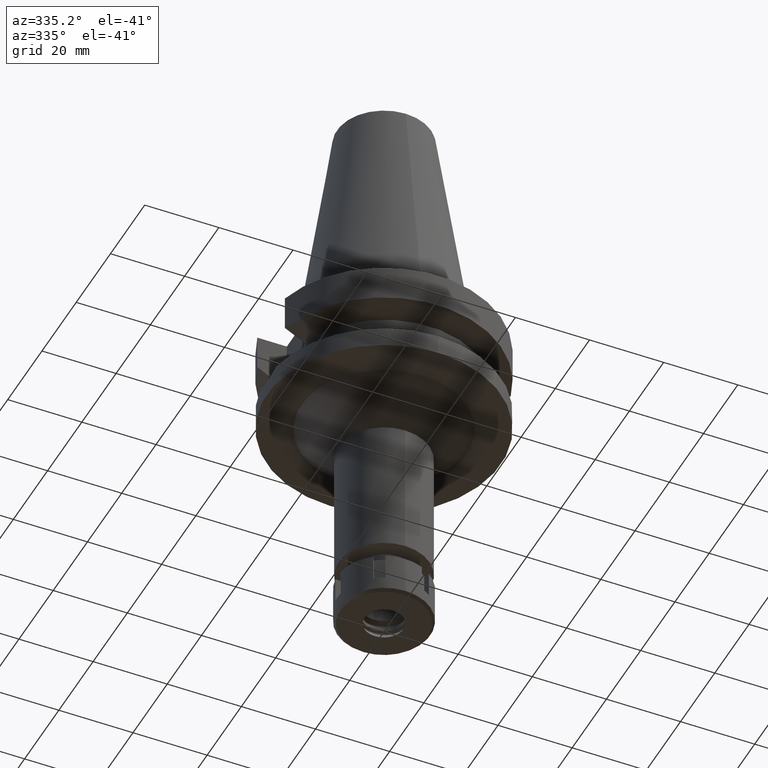
[diagram: clean part render]
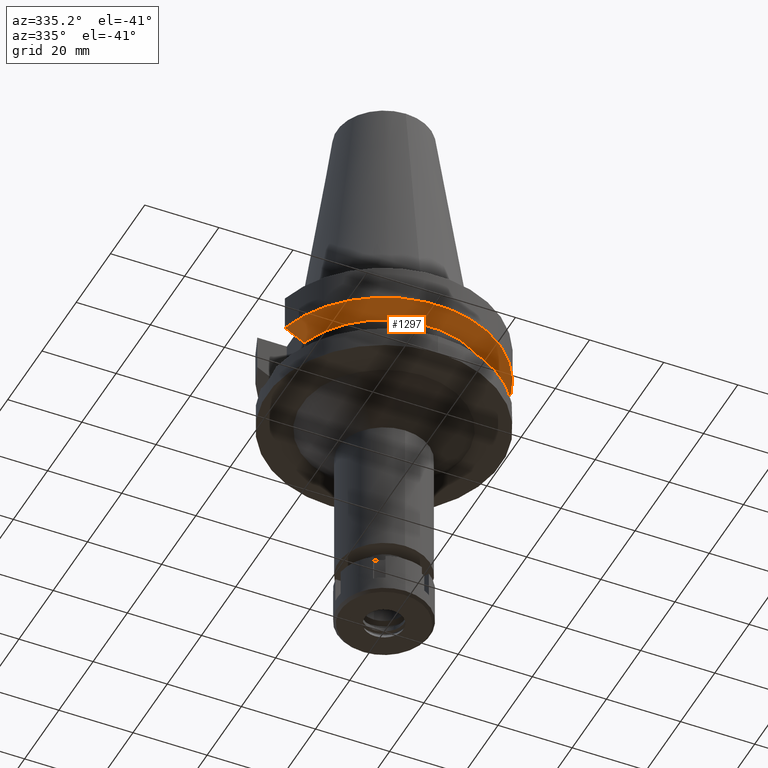
[diagram: same view with one face highlighted and labeled with its STEP entity id]
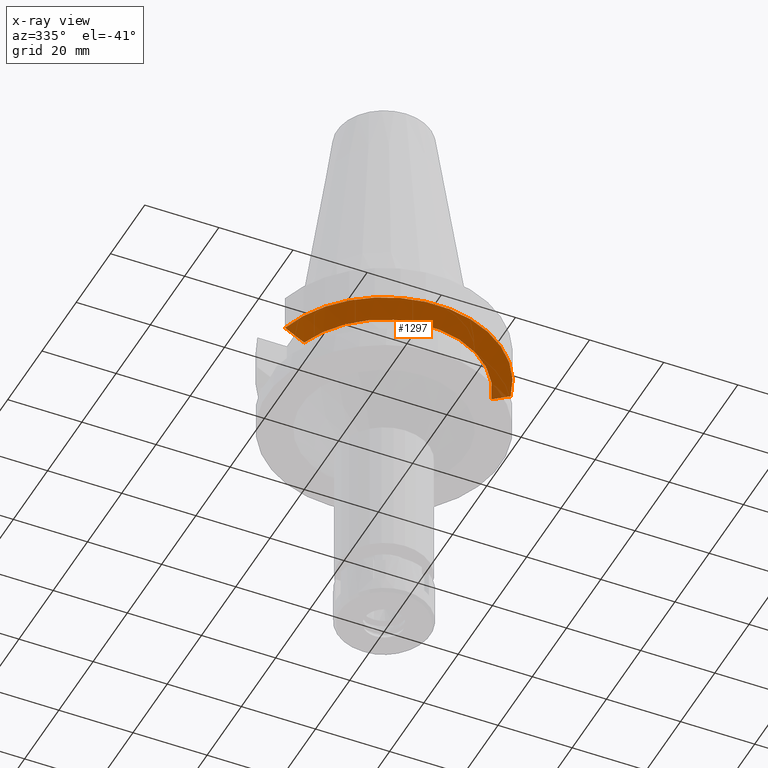
[diagram: x-ray of the same camera — body ghosted, the highlighted face saturated]
A machine part, auxiliary view. The second image highlights one B-rep face of the part: STEP entity #1297.
The next image is the same camera in x-ray: the body ghosted, the highlighted face saturated — about 2% of this face is hidden behind the body in this view.
In plain terms, the highlighted conical surface has half-angle 60 deg.
Its self-contained STEP definition (entity closure, byte-faithful):
#16 = DIRECTION ( 'NONE',  ( 0.0000000000000000000, 0.0000000000000000000, -1.000000000000000000 ) ) ;
#48 = DIRECTION ( 'NONE',  ( 0.0000000000000000000, -1.000000000000000000, 0.0000000000000000000 ) ) ;
#54 = ORIENTED_EDGE ( 'NONE', *, *, #342, .F. ) ;
#106 = CARTESIAN_POINT ( 'NONE',  ( -30.45402291386999849, -8.049999277101999695, -11.56551216365999935 ) ) ;
#223 = CARTESIAN_POINT ( 'NONE',  ( 26.83757720331292518, -8.050003170569667077, -13.57772970746904662 ) ) ;
#236 = CONICAL_SURFACE ( 'NONE', #2716, 29.00000000000000000, 1.047197551196400456 ) ;
#245 = VERTEX_POINT ( 'NONE', #2967 ) ;
#272 = AXIS2_PLACEMENT_3D ( 'NONE', #1451, #16, #2304 ) ;
#314 = FACE_OUTER_BOUND ( 'NONE', #2283, .T. ) ;
#342 = EDGE_CURVE ( 'NONE', #245, #3409, #975, .T. ) ;
#559 = VERTEX_POINT ( 'NONE', #3456 ) ;
#734 = B_SPLINE_CURVE_WITH_KNOTS ( 'NONE', 3,
 ( #2753, #223, #1350, #2476 ),
 .UNSPECIFIED., .F., .F.,
 ( 4, 4 ),
 ( 0.0000000000000000000, 1.000000000000000000 ),
 .UNSPECIFIED. ) ;
#737 = EDGE_CURVE ( 'NONE', #1723, #3409, #734, .T. ) ;
#763 = EDGE_CURVE ( 'NONE', #1723, #559, #3284, .T. ) ;
#975 = CIRCLE ( 'NONE', #3441, 31.50000000000000000 ) ;
#1129 = DIRECTION ( 'NONE',  ( 0.0000000000000000000, 1.000000000000000000, 0.0000000000000000000 ) ) ;
#1148 = ORIENTED_EDGE ( 'NONE', *, *, #3556, .T. ) ;
#1172 = CARTESIAN_POINT ( 'NONE',  ( 0.0000000000000000000, 1.065333950388000029E-14, -11.56550565266999975 ) ) ;
#1297 = ADVANCED_FACE ( 'NONE', ( #314 ), #236, .T. ) ;
#1350 = CARTESIAN_POINT ( 'NONE',  ( 28.57294941962396351, -8.050008286918806988, -12.61547995664736632 ) ) ;
#1416 = CARTESIAN_POINT ( 'NONE',  ( 30.45402272279000044, -8.049999999999000622, -11.56550565266999975 ) ) ;
#1451 = CARTESIAN_POINT ( 'NONE',  ( 0.0000000000000000000, 1.065333950388000029E-14, -14.45225699861000024 ) ) ;
#1723 = VERTEX_POINT ( 'NONE', #1900 ) ;
#1900 = CARTESIAN_POINT ( 'NONE',  ( 25.24772266958000344, -8.050000000000000711, -14.45225699861000024 ) ) ;
#2058 = CARTESIAN_POINT ( 'NONE',  ( -28.57292325936381516, -8.049998555145554846, -12.61549607292341513 ) ) ;
#2074 = CARTESIAN_POINT ( 'NONE',  ( -25.24772413207999833, -8.049995413068000261, -14.45229204876000040 ) ) ;
#2128 = ORIENTED_EDGE ( 'NONE', *, *, #763, .F. ) ;
#2283 = EDGE_LOOP ( 'NONE', ( #1148, #2128, #2357, #54 ) ) ;
#2304 = DIRECTION ( 'NONE',  ( 0.9527442516822307583, -0.3037735849057093818, 0.0000000000000000000 ) ) ;
#2357 = ORIENTED_EDGE ( 'NONE', *, *, #737, .T. ) ;
#2376 = CARTESIAN_POINT ( 'NONE',  ( -26.83754612761982372, -8.049990815978004477, -13.57774889983537570 ) ) ;
#2476 = CARTESIAN_POINT ( 'NONE',  ( 30.45402272279000044, -8.049999999999000622, -11.56550565266999975 ) ) ;
#2576 = CARTESIAN_POINT ( 'NONE',  ( 0.0000000000000000000, 1.065333950388000029E-14, -13.00888132564000088 ) ) ;
#2716 = AXIS2_PLACEMENT_3D ( 'NONE', #2576, #3410, #1129 ) ;
#2753 = CARTESIAN_POINT ( 'NONE',  ( 25.24772266958000344, -8.050000000000000711, -14.45225699861000024 ) ) ;
#2967 = CARTESIAN_POINT ( 'NONE',  ( -30.45402291386999849, -8.049999277101999695, -11.56551216365999935 ) ) ;
#3284 = CIRCLE ( 'NONE', #272, 26.50000000000000711 ) ;
#3285 = B_SPLINE_CURVE_WITH_KNOTS ( 'NONE', 3,
 ( #106, #2058, #2376, #2074 ),
 .UNSPECIFIED., .F., .F.,
 ( 4, 4 ),
 ( 0.0000000000000000000, 1.000000000000000000 ),
 .UNSPECIFIED. ) ;
#3368 = DIRECTION ( 'NONE',  ( 0.0000000000000000000, 0.0000000000000000000, 1.000000000000000000 ) ) ;
#3409 = VERTEX_POINT ( 'NONE', #1416 ) ;
#3410 = DIRECTION ( 'NONE',  ( 0.0000000000000000000, 0.0000000000000000000, 1.000000000000000000 ) ) ;
#3441 = AXIS2_PLACEMENT_3D ( 'NONE', #1172, #3368, #48 ) ;
#3456 = CARTESIAN_POINT ( 'NONE',  ( -25.24772413207999833, -8.049995413068000261, -14.45229204876000040 ) ) ;
#3556 = EDGE_CURVE ( 'NONE', #245, #559, #3285, .T. ) ;